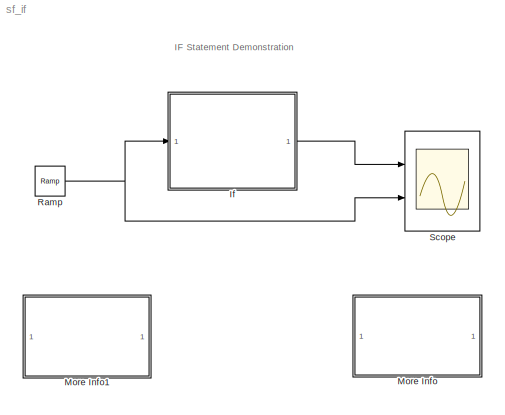
MODEL sf_if
KIND model
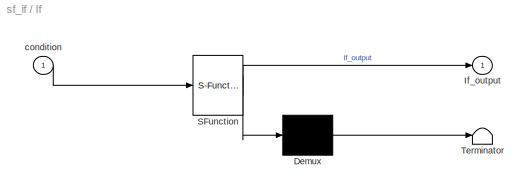
BLOCK [SubSystem] If
  MaskDescription = Stateflow diagram
  MaskDisplay = plot(sf('Private','sfblk','xIcon'),sf('Private','sfblk','yIcon'));text(0.5,0,sf('Private', 'sfblk', 'tIcon'),'HorizontalAl','Center','VerticalAl','Bottom');
  MaskIconFrame = off
  MaskIconOpaque = off
  MaskIconRotate = none
  MaskIconUnits = autoscale
  MaskSelfModifiable = on
  MaskType = Stateflow
  MinAlgLoopOccurrences = off
  Ports = [1, 1]
  PropExecContextAcrossSSBoundary = on
  RTWSystemCode = Auto
  TreatAsAtomicUnit = off
BLOCK [Demux] If/ Demux 
  Outputs = 1
  Ports = [1, 1]
BLOCK [S-Function] If/ SFunction 
  FunctionName = sf_sfun
  PortCounts = [1 2]
  Ports = [1, 2]
  Tag = Stateflow S-Function sf_if 1
BLOCK [Terminator] If/ Terminator 
BLOCK [Outport] If/If_output
  IconDisplay = Port number
BLOCK [Inport] If/condition
  IconDisplay = Port number
  LatchInput = off
  Port = 1
BLOCK [SubSystem] More Info
  MaskDisplay = disp('Double click\\nhere for\\ninformation on\\nthis demonstration')
  MaskIconFrame = on
  MaskIconOpaque = on
  MaskIconRotate = none
  MaskIconUnits = autoscale
  MinAlgLoopOccurrences = off
  Ports = []
  PropExecContextAcrossSSBoundary = on
  RTWSystemCode = Auto
  TreatAsAtomicUnit = off
BLOCK [SubSystem] More Info1
  MaskDisplay = disp('Double click\\nhere for<path> Help')
  MaskIconFrame = on
  MaskIconOpaque = on
  MaskIconRotate = none
  MaskIconUnits = autoscale
  MinAlgLoopOccurrences = off
  OpenFcn = simcad(bdroot);
  Ports = []
  PropExecContextAcrossSSBoundary = on
  RTWSystemCode = Auto
  TreatAsAtomicUnit = off
BLOCK [Reference] Ramp  REF=simulink/Sources/Ramp
  Ports = [0, 1]
  ShowPortLabels = on
  SourceBlock = simulink/Sources/Ramp
  SourceType = Ramp
  VectorParams1D = on
  X0 = 0
  slope = 10
  start = 0
BLOCK [Scope] Scope
  DataFormat = StructureWithTime
  LimitDataPoints = off
  NumInputPorts = 2
  Ports = [2]
  TimeRange = 10
  YMax = 400~100
  YMin = -100~0
ANNOTATION (root): IF Statement Demonstration
ANNOTATION More Info: IF Statement
ANNOTATION More Info: With the use of flow charts, Stateflow allows you to create C-Code or M-Code statements such as\nthe IF - ELSE statement. This particular demo shows how you can create a simple IF - ELSE\nstatement in Stateflow using an input from Simulink. The equivalent statement in MATLAB is as\nfollows:\n\nif condition 20 & condition <=50\n If_output = 50*sin(condition)\nelse\n If_ouptut = condition;\nend\n\nw...<+162ch>
LINE If/ Demux :1 -> If/ Terminator :1
LINE If/ SFunction :1 -> If/ Demux :1
LINE If/ SFunction :2 -> If/If_output:1
LINE If/condition:1 -> If/ SFunction :1
LINE If:1 -> Scope:1
NET Ramp:1 -> If:1, Scope:2
note: NET lines group one-source signal fan-out (src -> all destinations, sorted); 1:1 wires keep LINE
CHART If states=1 transitions=5
  STATE_LABEL 'Equivalent M-Code:\\n\\nif condition <= 20\\n    If_output = condition^2;\\nelseif condition > 20 & condition <=50\\n   If_output = 50*sin(condition)\\nelse\\n   If_ouptut = condition;\\nend'
note: 1 file-system path scrubbed to <path> (not preserved elsewhere — flat text is the only slx artifact)
